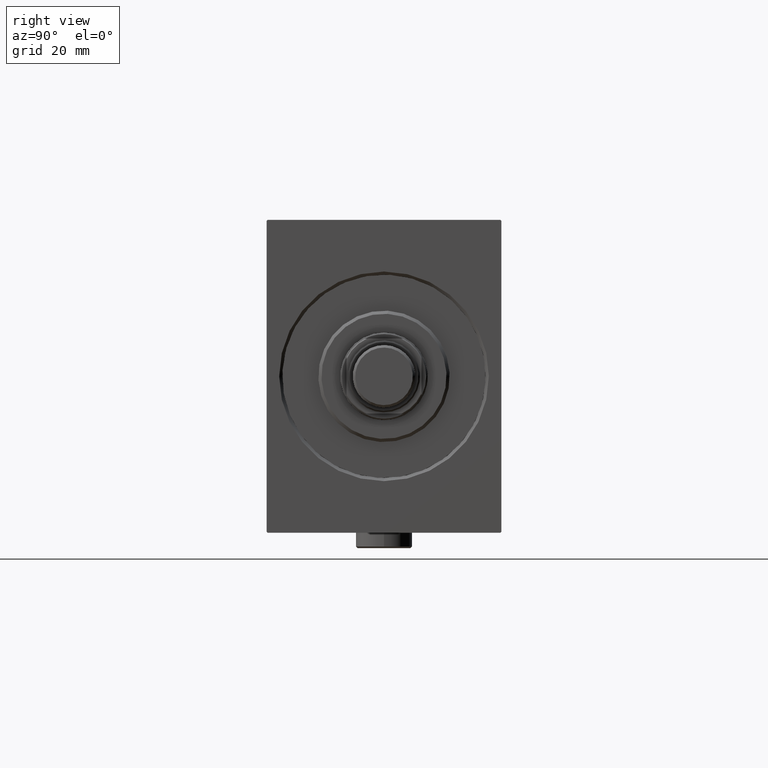
[diagram: clean part render]
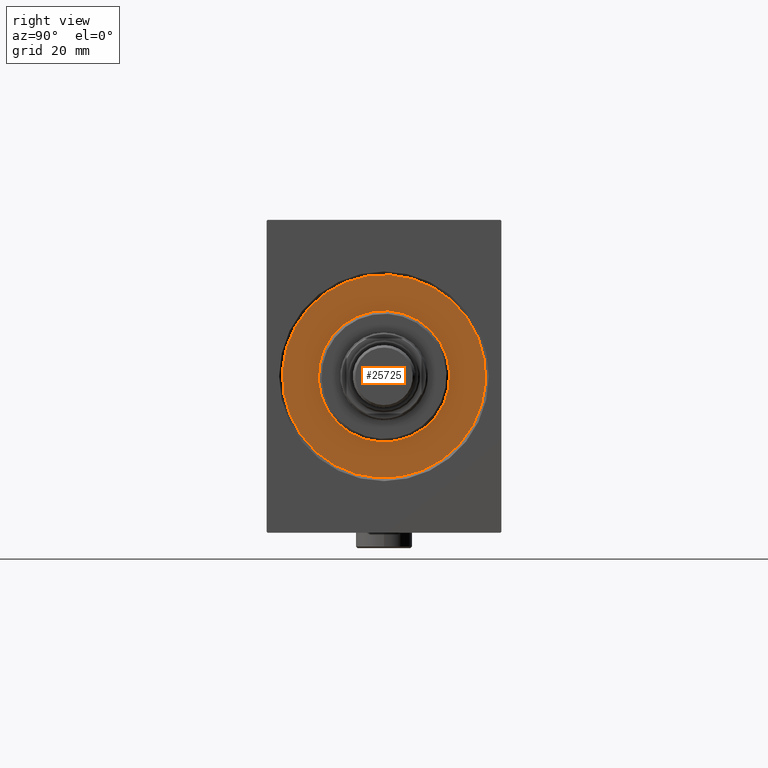
[diagram: same view with one face highlighted and labeled with its STEP entity id]
A machine part, right view. The second image highlights one B-rep face of the part: STEP entity #25725.
In plain terms, the highlighted planar face has unit normal (-1, 0, 0).
Its self-contained STEP definition (entity closure, byte-faithful):
#2001 = DIRECTION ( 'NONE',  ( 0.000000000000000000, 0.000000000000000000, 1.000000000000000000 ) ) ;
#2435 = DIRECTION ( 'NONE',  ( 0.000000000000000000, 0.000000000000000000, -1.000000000000000000 ) ) ;
#2563 = DIRECTION ( 'NONE',  ( 0.000000000000000000, 0.000000000000000000, -1.000000000000000000 ) ) ;
#3069 = DIRECTION ( 'NONE',  ( 0.000000000000000000, 0.000000000000000000, 1.000000000000000000 ) ) ;
#4276 = ORIENTED_EDGE ( 'NONE', *, *, #33353, .F. ) ;
#5532 = FACE_BOUND ( 'NONE', #24629, .T. ) ;
#5689 = CARTESIAN_POINT ( 'NONE',  ( 0.000000000000000000, 0.000000000000000000, 21.00000000000000000 ) ) ;
#6328 = CARTESIAN_POINT ( 'NONE',  ( 0.000000000000000000, 3.980102097228898626E-15, 32.50000000000000000 ) ) ;
#9091 = DIRECTION ( 'NONE',  ( -1.000000000000000000, 0.000000000000000000, 0.000000000000000000 ) ) ;
#9439 = EDGE_CURVE ( 'NONE', #34614, #28889, #12213, .T. ) ;
#10745 = ORIENTED_EDGE ( 'NONE', *, *, #23001, .F. ) ;
#12213 = CIRCLE ( 'NONE', #14349, 21.00000000000000000 ) ;
#13009 = CIRCLE ( 'NONE', #40899, 32.50000000000000000 ) ;
#14349 = AXIS2_PLACEMENT_3D ( 'NONE', #22238, #19321, #2563 ) ;
#15110 = AXIS2_PLACEMENT_3D ( 'NONE', #16498, #43150, #2435 ) ;
#15978 = CIRCLE ( 'NONE', #39566, 32.50000000000000000 ) ;
#16498 = CARTESIAN_POINT ( 'NONE',  ( 0.000000000000000000, 0.000000000000000000, 0.000000000000000000 ) ) ;
#17727 = EDGE_CURVE ( 'NONE', #39854, #22390, #13009, .T. ) ;
#19321 = DIRECTION ( 'NONE',  ( 1.000000000000000000, -0.000000000000000000, 0.000000000000000000 ) ) ;
#22238 = CARTESIAN_POINT ( 'NONE',  ( 0.000000000000000000, 0.000000000000000000, 0.000000000000000000 ) ) ;
#22287 = ORIENTED_EDGE ( 'NONE', *, *, #17727, .F. ) ;
#22390 = VERTEX_POINT ( 'NONE', #6328 ) ;
#23001 = EDGE_CURVE ( 'NONE', #28889, #34614, #34407, .T. ) ;
#24629 = EDGE_LOOP ( 'NONE', ( #10745, #26913 ) ) ;
#25725 = ADVANCED_FACE ( 'NONE', ( #5532, #26558 ), #43346, .F. ) ;
#26558 = FACE_OUTER_BOUND ( 'NONE', #37836, .T. ) ;
#26913 = ORIENTED_EDGE ( 'NONE', *, *, #9439, .F. ) ;
#28889 = VERTEX_POINT ( 'NONE', #5689 ) ;
#30283 = CARTESIAN_POINT ( 'NONE',  ( 0.000000000000000000, 2.571758278209441661E-15, -21.00000000000000000 ) ) ;
#32637 = DIRECTION ( 'NONE',  ( -1.000000000000000000, 0.000000000000000000, 0.000000000000000000 ) ) ;
#33353 = EDGE_CURVE ( 'NONE', #22390, #39854, #15978, .T. ) ;
#34161 = CARTESIAN_POINT ( 'NONE',  ( 0.000000000000000000, 0.000000000000000000, -32.50000000000000000 ) ) ;
#34407 = CIRCLE ( 'NONE', #15110, 21.00000000000000000 ) ;
#34614 = VERTEX_POINT ( 'NONE', #30283 ) ;
#35995 = CARTESIAN_POINT ( 'NONE',  ( 0.000000000000000000, 0.000000000000000000, 0.000000000000000000 ) ) ;
#36623 = AXIS2_PLACEMENT_3D ( 'NONE', #37063, #36625, #3069 ) ;
#36625 = DIRECTION ( 'NONE',  ( -1.000000000000000000, 0.000000000000000000, 0.000000000000000000 ) ) ;
#37063 = CARTESIAN_POINT ( 'NONE',  ( 0.000000000000000000, 0.000000000000000000, 0.000000000000000000 ) ) ;
#37836 = EDGE_LOOP ( 'NONE', ( #22287, #4276 ) ) ;
#39566 = AXIS2_PLACEMENT_3D ( 'NONE', #35995, #32637, #2001 ) ;
#39854 = VERTEX_POINT ( 'NONE', #34161 ) ;
#39968 = CARTESIAN_POINT ( 'NONE',  ( 0.000000000000000000, 0.000000000000000000, 0.000000000000000000 ) ) ;
#40899 = AXIS2_PLACEMENT_3D ( 'NONE', #39968, #9091, #43548 ) ;
#43150 = DIRECTION ( 'NONE',  ( 1.000000000000000000, -0.000000000000000000, 0.000000000000000000 ) ) ;
#43346 = PLANE ( 'NONE',  #36623 ) ;
#43548 = DIRECTION ( 'NONE',  ( 0.000000000000000000, 0.000000000000000000, 1.000000000000000000 ) ) ;